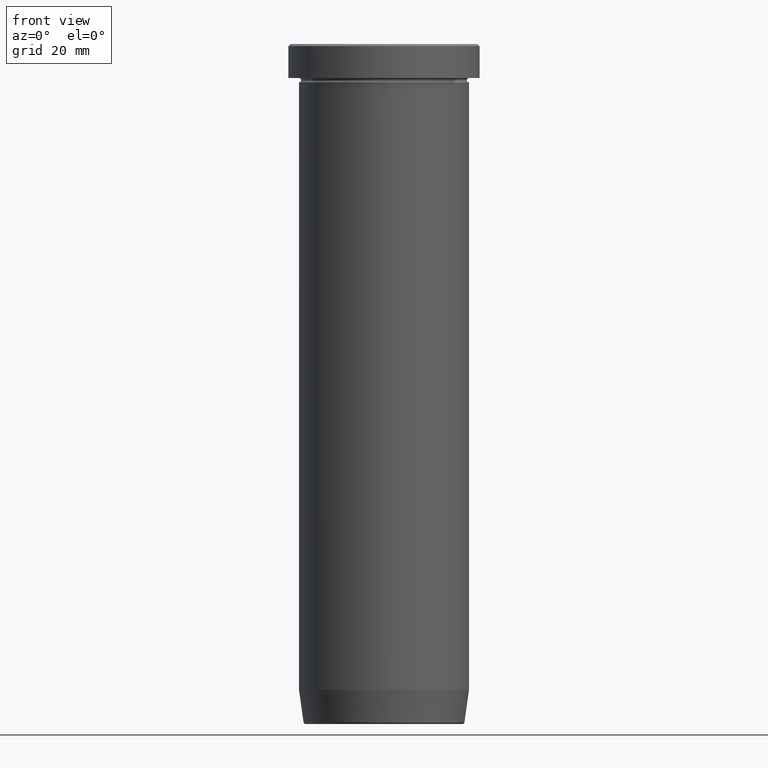
[diagram: clean part render]
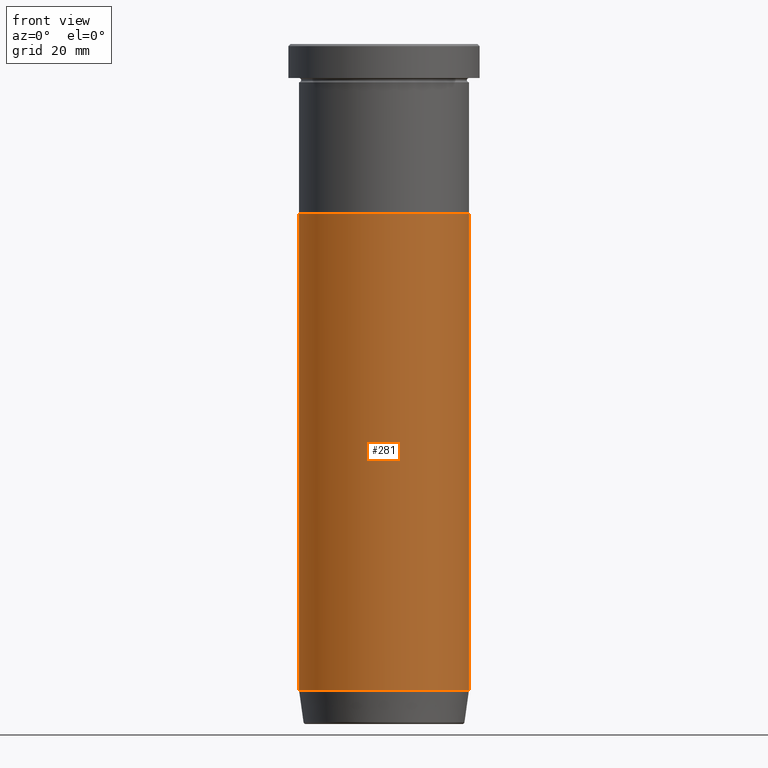
[diagram: same view with one face highlighted and labeled with its STEP entity id]
A machine part, front view. The second image highlights one B-rep face of the part: STEP entity #281.
In plain terms, the highlighted cylindrical surface (partial cylindrical patch) has radius 20 mm, axis along (-0, -0, 1).
Its self-contained STEP definition (entity closure, byte-faithful):
#68 = VERTEX_POINT ( 'NONE', #173 ) ;
#72 = EDGE_LOOP ( 'NONE', ( #501, #340, #492, #421 ) ) ;
#94 = VERTEX_POINT ( 'NONE', #115 ) ;
#115 = CARTESIAN_POINT ( 'NONE',  ( 20.00000000000000000, 0.000000000000000000, -151.9999999999999716 ) ) ;
#127 = DIRECTION ( 'NONE',  ( -0.000000000000000000, -0.000000000000000000, 1.000000000000000000 ) ) ;
#139 = EDGE_CURVE ( 'NONE', #68, #332, #337, .T. ) ;
#143 = DIRECTION ( 'NONE',  ( 1.000000000000000000, 0.000000000000000000, 0.000000000000000000 ) ) ;
#149 = CARTESIAN_POINT ( 'NONE',  ( 0.000000000000000000, 0.000000000000000000, 0.000000000000000000 ) ) ;
#173 = CARTESIAN_POINT ( 'NONE',  ( -20.00000000000000000, 2.449293598294706513E-15, -40.00000000000000000 ) ) ;
#193 = DIRECTION ( 'NONE',  ( -0.000000000000000000, -0.000000000000000000, 1.000000000000000000 ) ) ;
#204 = VECTOR ( 'NONE', #127, 1000.000000000000000 ) ;
#224 = LINE ( 'NONE', #414, #270 ) ;
#241 = DIRECTION ( 'NONE',  ( 1.000000000000000000, 0.000000000000000000, 0.000000000000000000 ) ) ;
#270 = VECTOR ( 'NONE', #590, 1000.000000000000000 ) ;
#276 = EDGE_CURVE ( 'NONE', #438, #94, #431, .T. ) ;
#281 = ADVANCED_FACE ( 'NONE', ( #336 ), #333, .T. ) ;
#322 = CARTESIAN_POINT ( 'NONE',  ( -20.00000000000000000, 2.449293598294706513E-15, 0.000000000000000000 ) ) ;
#329 = DIRECTION ( 'NONE',  ( -0.000000000000000000, -0.000000000000000000, 1.000000000000000000 ) ) ;
#332 = VERTEX_POINT ( 'NONE', #374 ) ;
#333 = CYLINDRICAL_SURFACE ( 'NONE', #353, 20.00000000000000000 ) ;
#336 = FACE_OUTER_BOUND ( 'NONE', #72, .T. ) ;
#337 = CIRCLE ( 'NONE', #459, 20.00000000000000000 ) ;
#340 = ORIENTED_EDGE ( 'NONE', *, *, #276, .T. ) ;
#349 = CARTESIAN_POINT ( 'NONE',  ( -20.00000000000000000, 2.449293598294706513E-15, -151.9999999999999716 ) ) ;
#353 = AXIS2_PLACEMENT_3D ( 'NONE', #149, #193, #241 ) ;
#374 = CARTESIAN_POINT ( 'NONE',  ( 20.00000000000000000, 0.000000000000000000, -40.00000000000000000 ) ) ;
#406 = AXIS2_PLACEMENT_3D ( 'NONE', #517, #329, #143 ) ;
#414 = CARTESIAN_POINT ( 'NONE',  ( 20.00000000000000000, 0.000000000000000000, 0.000000000000000000 ) ) ;
#421 = ORIENTED_EDGE ( 'NONE', *, *, #139, .F. ) ;
#431 = CIRCLE ( 'NONE', #406, 20.00000000000000000 ) ;
#438 = VERTEX_POINT ( 'NONE', #349 ) ;
#459 = AXIS2_PLACEMENT_3D ( 'NONE', #584, #526, #486 ) ;
#486 = DIRECTION ( 'NONE',  ( 1.000000000000000000, 0.000000000000000000, 0.000000000000000000 ) ) ;
#491 = EDGE_CURVE ( 'NONE', #94, #332, #224, .T. ) ;
#492 = ORIENTED_EDGE ( 'NONE', *, *, #491, .T. ) ;
#501 = ORIENTED_EDGE ( 'NONE', *, *, #594, .F. ) ;
#517 = CARTESIAN_POINT ( 'NONE',  ( 0.000000000000000000, 0.000000000000000000, -151.9999999999999716 ) ) ;
#526 = DIRECTION ( 'NONE',  ( -0.000000000000000000, -0.000000000000000000, 1.000000000000000000 ) ) ;
#541 = LINE ( 'NONE', #322, #204 ) ;
#584 = CARTESIAN_POINT ( 'NONE',  ( 0.000000000000000000, 0.000000000000000000, -40.00000000000000000 ) ) ;
#590 = DIRECTION ( 'NONE',  ( -0.000000000000000000, -0.000000000000000000, 1.000000000000000000 ) ) ;
#594 = EDGE_CURVE ( 'NONE', #438, #68, #541, .T. ) ;